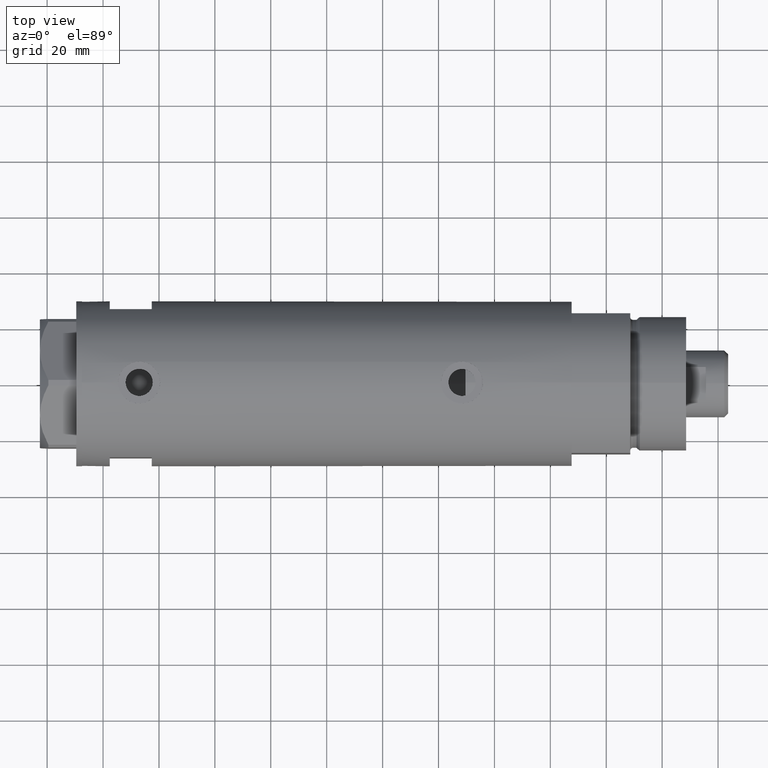
[diagram: clean part render]
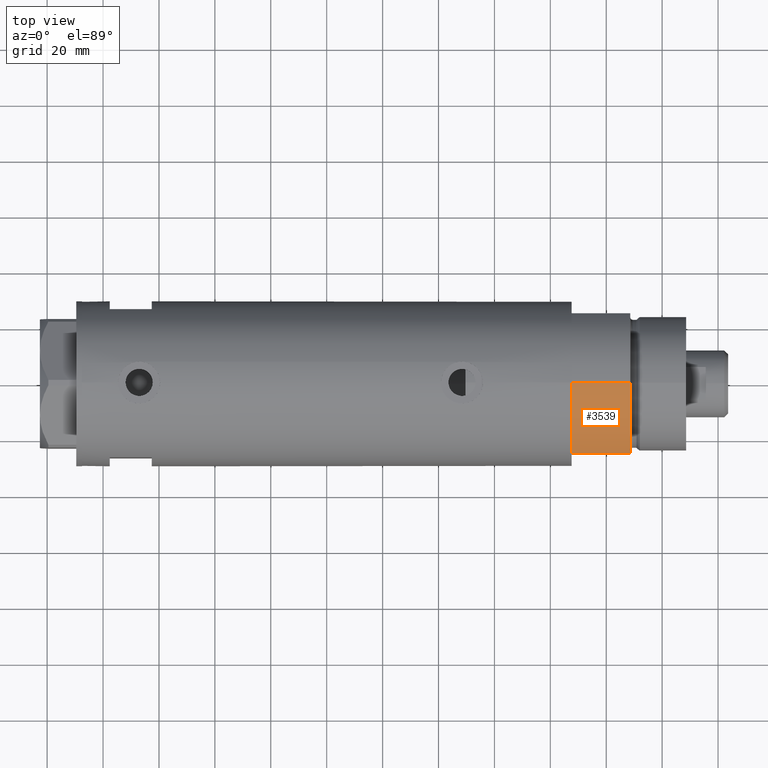
[diagram: same view with one face highlighted and labeled with its STEP entity id]
A machine part, top view. The second image highlights one B-rep face of the part: STEP entity #3539.
In plain terms, the highlighted cylindrical surface (partial cylindrical patch) has radius 29.5 mm, axis along (-1, -0, 0).
Its self-contained STEP definition (entity closure, byte-faithful):
#54 = ORIENTED_EDGE ( 'NONE', *, *, #2421, .T. ) ;
#243 = DIRECTION ( 'NONE',  ( 1.000000000000000000, 0.000000000000000000, 0.000000000000000000 ) ) ;
#267 = CYLINDRICAL_SURFACE ( 'NONE', #1519, 29.50000000000000355 ) ;
#413 = CARTESIAN_POINT ( 'NONE',  ( 0.000000000000000000, 0.000000000000000000, 0.000000000000000000 ) ) ;
#504 = VECTOR ( 'NONE', #994, 1000.000000000000000 ) ;
#586 = DIRECTION ( 'NONE',  ( -0.000000000000000000, -0.000000000000000000, -1.000000000000000000 ) ) ;
#634 = CARTESIAN_POINT ( 'NONE',  ( -15.66045976336582690, -25.00000000000000000, 0.000000000000000000 ) ) ;
#822 = CARTESIAN_POINT ( 'NONE',  ( 0.000000000000000000, 0.000000000000000000, 21.00000000000000000 ) ) ;
#953 = DIRECTION ( 'NONE',  ( 0.000000000000000000, 0.000000000000000000, 1.000000000000000000 ) ) ;
#994 = DIRECTION ( 'NONE',  ( -0.000000000000000000, -0.000000000000000000, 1.000000000000000000 ) ) ;
#1162 = FACE_OUTER_BOUND ( 'NONE', #2059, .T. ) ;
#1166 = CIRCLE ( 'NONE', #3176, 29.50000000000000355 ) ;
#1287 = DIRECTION ( 'NONE',  ( -1.000000000000000000, 0.000000000000000000, 0.000000000000000000 ) ) ;
#1433 = ORIENTED_EDGE ( 'NONE', *, *, #2247, .T. ) ;
#1519 = AXIS2_PLACEMENT_3D ( 'NONE', #822, #2998, #1287 ) ;
#1575 = LINE ( 'NONE', #2930, #4412 ) ;
#1576 = VERTEX_POINT ( 'NONE', #1843 ) ;
#1754 = AXIS2_PLACEMENT_3D ( 'NONE', #2611, #953, #243 ) ;
#1763 = DIRECTION ( 'NONE',  ( 0.000000000000000000, 0.000000000000000000, 1.000000000000000000 ) ) ;
#1843 = CARTESIAN_POINT ( 'NONE',  ( -29.50000000000000355, 0.000000000000000000, 21.00000000000000000 ) ) ;
#2059 = EDGE_LOOP ( 'NONE', ( #2193, #1433, #2843, #54 ) ) ;
#2193 = ORIENTED_EDGE ( 'NONE', *, *, #2282, .F. ) ;
#2247 = EDGE_CURVE ( 'NONE', #1576, #4360, #1575, .T. ) ;
#2282 = EDGE_CURVE ( 'NONE', #1576, #2821, #3400, .T. ) ;
#2421 = EDGE_CURVE ( 'NONE', #4264, #2821, #2709, .T. ) ;
#2476 = DIRECTION ( 'NONE',  ( 1.000000000000000000, 0.000000000000000000, 0.000000000000000000 ) ) ;
#2495 = CARTESIAN_POINT ( 'NONE',  ( -29.50000000000000355, 0.000000000000000000, 0.000000000000000000 ) ) ;
#2611 = CARTESIAN_POINT ( 'NONE',  ( 0.000000000000000000, 0.000000000000000000, 21.00000000000000000 ) ) ;
#2709 = LINE ( 'NONE', #3725, #504 ) ;
#2821 = VERTEX_POINT ( 'NONE', #3990 ) ;
#2843 = ORIENTED_EDGE ( 'NONE', *, *, #4410, .T. ) ;
#2930 = CARTESIAN_POINT ( 'NONE',  ( -29.50000000000000355, 0.000000000000000000, 21.00000000000000000 ) ) ;
#2998 = DIRECTION ( 'NONE',  ( -0.000000000000000000, -0.000000000000000000, -1.000000000000000000 ) ) ;
#3176 = AXIS2_PLACEMENT_3D ( 'NONE', #413, #1763, #2476 ) ;
#3400 = CIRCLE ( 'NONE', #1754, 29.50000000000000355 ) ;
#3539 = ADVANCED_FACE ( 'NONE', ( #1162 ), #267, .T. ) ;
#3725 = CARTESIAN_POINT ( 'NONE',  ( -15.66045976336583401, -25.00000000000000000, 0.000000000000000000 ) ) ;
#3990 = CARTESIAN_POINT ( 'NONE',  ( -15.66045976336583045, -24.99999999999999645, 20.99999999999999645 ) ) ;
#4264 = VERTEX_POINT ( 'NONE', #634 ) ;
#4360 = VERTEX_POINT ( 'NONE', #2495 ) ;
#4410 = EDGE_CURVE ( 'NONE', #4360, #4264, #1166, .T. ) ;
#4412 = VECTOR ( 'NONE', #586, 1000.000000000000000 ) ;